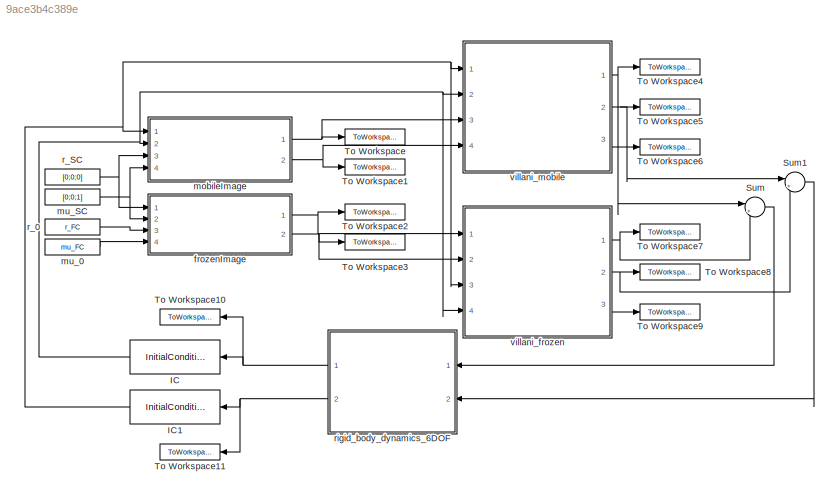
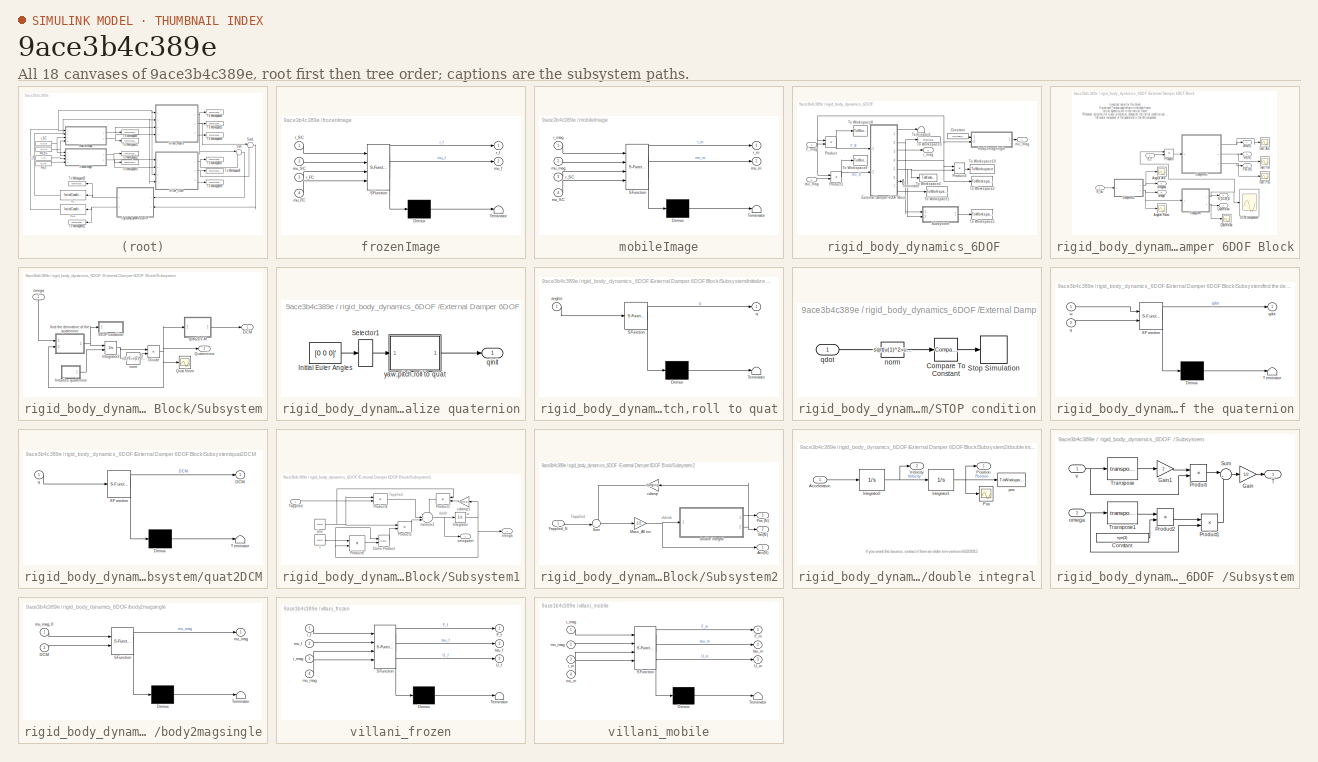
[diagram: thumbnail index - all 18 canvases of the model, root first then tree order]
MODEL slx_9ace3b4c389e
KIND model
BLOCK [InitialCondition] IC
  Value = mu_mag_0
BLOCK [InitialCondition] IC1
  Value = r_mag_0
BLOCK [Sum] Sum
  IconShape = round
  InputSameDT = off
  Inputs = |++
  OutDataTypeStr = Inherit: Inherit via internal rule
  Ports = [2, 1]
  SaturateOnIntegerOverflow = off
BLOCK [Sum] Sum1
  IconShape = round
  InputSameDT = off
  Inputs = |++
  OutDataTypeStr = Inherit: Inherit via internal rule
  Ports = [2, 1]
  SaturateOnIntegerOverflow = off
BLOCK [ToWorkspace] To Workspace
  FixptAsFi = on
  MaxDataPoints = inf
  Ports = [1]
  SampleTime = -1
  Save2DSignal = 3-D array (concatenate along third dimension)
  SaveFormat = Timeseries
  VariableName = r_m
BLOCK [ToWorkspace] To Workspace1
  FixptAsFi = on
  MaxDataPoints = inf
  Ports = [1]
  SampleTime = -1
  Save2DSignal = 3-D array (concatenate along third dimension)
  SaveFormat = Timeseries
  VariableName = mu_m
BLOCK [ToWorkspace] To Workspace10
  FixptAsFi = on
  MaxDataPoints = inf
  Ports = [1]
  SampleTime = -1
  Save2DSignal = 3-D array (concatenate along third dimension)
  SaveFormat = Timeseries
  VariableName = mu_mag
BLOCK [ToWorkspace] To Workspace11
  FixptAsFi = on
  MaxDataPoints = inf
  Ports = [1]
  SampleTime = -1
  Save2DSignal = 3-D array (concatenate along third dimension)
  SaveFormat = Timeseries
  VariableName = r_mag
BLOCK [ToWorkspace] To Workspace2
  FixptAsFi = on
  MaxDataPoints = inf
  Ports = [1]
  SampleTime = -1
  Save2DSignal = 3-D array (concatenate along third dimension)
  SaveFormat = Timeseries
  VariableName = r_f
BLOCK [ToWorkspace] To Workspace3
  FixptAsFi = on
  MaxDataPoints = inf
  Ports = [1]
  SampleTime = -1
  Save2DSignal = 3-D array (concatenate along third dimension)
  SaveFormat = Timeseries
  VariableName = mu_f
BLOCK [ToWorkspace] To Workspace4
  FixptAsFi = on
  MaxDataPoints = inf
  Ports = [1]
  SampleTime = -1
  Save2DSignal = 3-D array (concatenate along third dimension)
  SaveFormat = Timeseries
  VariableName = F_m
BLOCK [ToWorkspace] To Workspace5
  FixptAsFi = on
  MaxDataPoints = inf
  Ports = [1]
  SampleTime = -1
  Save2DSignal = 3-D array (concatenate along third dimension)
  SaveFormat = Timeseries
  VariableName = tau_m
BLOCK [ToWorkspace] To Workspace6
  FixptAsFi = on
  MaxDataPoints = inf
  Ports = [1]
  SampleTime = -1
  Save2DSignal = 3-D array (concatenate along third dimension)
  SaveFormat = Timeseries
  VariableName = U_m
BLOCK [ToWorkspace] To Workspace7
  FixptAsFi = on
  MaxDataPoints = inf
  Ports = [1]
  SampleTime = -1
  Save2DSignal = 3-D array (concatenate along third dimension)
  SaveFormat = Timeseries
  VariableName = F_f
BLOCK [ToWorkspace] To Workspace8
  FixptAsFi = on
  MaxDataPoints = inf
  Ports = [1]
  SampleTime = -1
  Save2DSignal = 3-D array (concatenate along third dimension)
  SaveFormat = Timeseries
  VariableName = tau_f
BLOCK [ToWorkspace] To Workspace9
  FixptAsFi = on
  MaxDataPoints = inf
  Ports = [1]
  SampleTime = -1
  Save2DSignal = 3-D array (concatenate along third dimension)
  SaveFormat = Timeseries
  VariableName = U_f
BLOCK [SubSystem] frozenImage
  ErrorFcn = Stateflow.Translate.translate
  PermitHierarchicalResolution = ExplicitOnly
  Ports = [4, 2]
  RequestExecContextInheritance = off
  SFBlockType = MATLAB Function
  TreatAsAtomicUnit = on
BLOCK [Demux] frozenImage/ Demux 
  Outputs = 1
  Ports = [1, 1]
BLOCK [S-Function] frozenImage/ SFunction 
  EnableBusSupport = on
  FunctionName = sf_sfun
  PortCounts = [4 3]
  Ports = [4, 3]
  Tag = Stateflow S-Function single_magnet_single_superconductor 1
BLOCK [Terminator] frozenImage/ Terminator 
BLOCK [Inport] frozenImage/mu_FC
  IconDisplay = Port number
  Port = 4
BLOCK [Inport] frozenImage/mu_SC
  IconDisplay = Port number
  Port = 2
BLOCK [Outport] frozenImage/mu_f
  IconDisplay = Port number
  Port = 2
BLOCK [Inport] frozenImage/r_FC
  IconDisplay = Port number
  Port = 3
BLOCK [Inport] frozenImage/r_SC
  IconDisplay = Port number
BLOCK [Outport] frozenImage/r_f
  IconDisplay = Port number
BLOCK [SubSystem] mobileImage
  ErrorFcn = Stateflow.Translate.translate
  PermitHierarchicalResolution = ExplicitOnly
  Ports = [4, 2]
  RequestExecContextInheritance = off
  SFBlockType = MATLAB Function
  TreatAsAtomicUnit = on
BLOCK [Demux] mobileImage/ Demux 
  Outputs = 1
  Ports = [1, 1]
BLOCK [S-Function] mobileImage/ SFunction 
  EnableBusSupport = on
  FunctionName = sf_sfun
  PortCounts = [4 3]
  Ports = [4, 3]
  Tag = Stateflow S-Function single_magnet_single_superconductor 2
BLOCK [Terminator] mobileImage/ Terminator 
BLOCK [Inport] mobileImage/mu_SC
  IconDisplay = Port number
  Port = 4
BLOCK [Outport] mobileImage/mu_m
  IconDisplay = Port number
  Port = 2
BLOCK [Inport] mobileImage/mu_mag
  IconDisplay = Port number
  Port = 2
BLOCK [Inport] mobileImage/r_SC
  IconDisplay = Port number
  Port = 3
BLOCK [Outport] mobileImage/r_m
  IconDisplay = Port number
BLOCK [Inport] mobileImage/r_mag
  IconDisplay = Port number
BLOCK [Constant] mu_0
  Value = mu_FC
BLOCK [Constant] mu_SC
  Value = [0;0;1]
BLOCK [Constant] r_0
  Value = r_FC
BLOCK [Constant] r_SC
  Value = [0;0;0]
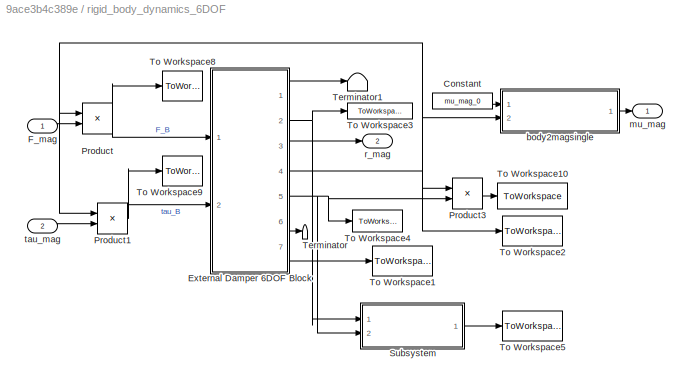
BLOCK [SubSystem] rigid_body_dynamics_6DOF 
  Ports = [2, 2]
  RequestExecContextInheritance = off
BLOCK [Constant] rigid_body_dynamics_6DOF /Constant
  Value = mu_mag_0
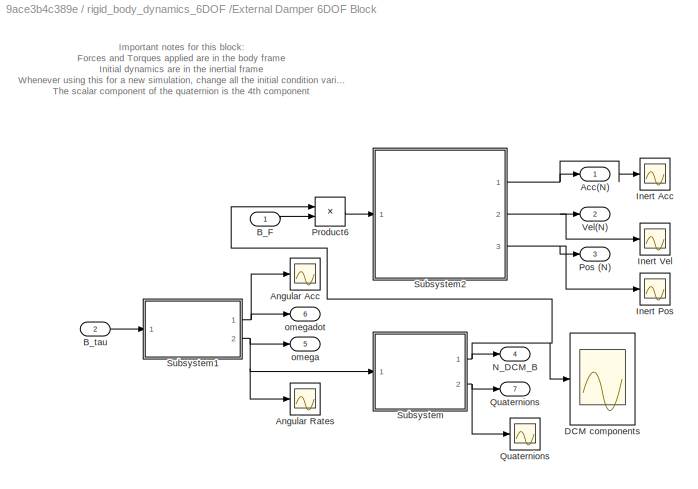
BLOCK [SubSystem] rigid_body_dynamics_6DOF /External Damper 6DOF Block
  AncestorBlock = OS_Sim_library/External Damper 6DOF block\nCollision Block
  Ports = [2, 7]
  RequestExecContextInheritance = off
BLOCK [Outport] rigid_body_dynamics_6DOF /External Damper 6DOF Block/Acc(N)
  IconDisplay = Port number
BLOCK [Scope] rigid_body_dynamics_6DOF /External Damper 6DOF Block/Angular Acc
  DataFormat = StructureWithTime
  Floating = off
  NumInputPorts = 1
  Ports = [1]
  SampleTime = 0
  SaveName = ScopeData30
  ShowLegends = off
  ZoomMode = xonly
BLOCK [Scope] rigid_body_dynamics_6DOF /External Damper 6DOF Block/Angular Rates
  DataFormat = StructureWithTime
  Floating = off
  NumInputPorts = 1
  Ports = [1]
  SampleTime = 0
  SaveName = ScopeData31
  ShowLegends = off
  ZoomMode = yonly
BLOCK [Inport] rigid_body_dynamics_6DOF /External Damper 6DOF Block/B_F
  IconDisplay = Port number
BLOCK [Inport] rigid_body_dynamics_6DOF /External Damper 6DOF Block/B_tau
  IconDisplay = Port number
  Port = 2
BLOCK [Scope] rigid_body_dynamics_6DOF /External Damper 6DOF Block/DCM components
  DataFormat = StructureWithTime
  Floating = off
  NumInputPorts = 1
  Ports = [1]
  SampleTime = 0
  SaveName = ScopeData34
  ShowLegends = off
  ZoomMode = xonly
BLOCK [Scope] rigid_body_dynamics_6DOF /External Damper 6DOF Block/Inert Acc
  DataFormat = StructureWithTime
  Floating = off
  NumInputPorts = 1
  Ports = [1]
  SampleTime = 0
  SaveName = ScopeData20
  ShowLegends = off
  ZoomMode = xonly
BLOCK [Scope] rigid_body_dynamics_6DOF /External Damper 6DOF Block/Inert Pos
  DataFormat = StructureWithTime
  Floating = off
  NumInputPorts = 1
  Ports = [1]
  SampleTime = 0
  SaveName = ScopeData22
  ShowLegends = off
  ZoomMode = yonly
BLOCK [Scope] rigid_body_dynamics_6DOF /External Damper 6DOF Block/Inert Vel
  DataFormat = StructureWithTime
  Floating = off
  NumInputPorts = 1
  Ports = [1]
  SampleTime = 0
  SaveName = ScopeData21
  ShowLegends = off
  ZoomMode = xonly
BLOCK [Outport] rigid_body_dynamics_6DOF /External Damper 6DOF Block/N_DCM_B
  IconDisplay = Port number
  Port = 4
BLOCK [Outport] rigid_body_dynamics_6DOF /External Damper 6DOF Block/Pos (N)
  IconDisplay = Port number
  Port = 3
BLOCK [Product] rigid_body_dynamics_6DOF /External Damper 6DOF Block/Product6
  InputSameDT = off
  Multiplication = Matrix(*)
  OutDataTypeStr = Inherit: Inherit via internal rule
  Ports = [2, 1]
  SaturateOnIntegerOverflow = off
BLOCK [Outport] rigid_body_dynamics_6DOF /External Damper 6DOF Block/Quaternions
  IconDisplay = Port number
  Port = 7
BLOCK [Scope] rigid_body_dynamics_6DOF /External Damper 6DOF Block/Quaternions 
  DataFormat = StructureWithTime
  Floating = off
  NumInputPorts = 1
  Ports = [1]
  SampleTime = 0
  SaveName = ScopeData33
  ShowLegends = off
  ZoomMode = xonly
BLOCK [SubSystem] rigid_body_dynamics_6DOF /External Damper 6DOF Block/Subsystem
  Ports = [1, 2]
  RequestExecContextInheritance = off
BLOCK [Outport] rigid_body_dynamics_6DOF /External Damper 6DOF Block/Subsystem/DCM
  IconDisplay = Port number
BLOCK [Product] rigid_body_dynamics_6DOF /External Damper 6DOF Block/Subsystem/Divide
  InputSameDT = off
  Inputs = */
  OutDataTypeStr = Inherit: Inherit via internal rule
  Ports = [2, 1]
  RndMeth = Floor
  SaturateOnIntegerOverflow = off
BLOCK [SubSystem] rigid_body_dynamics_6DOF /External Damper 6DOF Block/Subsystem/Initialize quaternion
  Ports = [0, 1]
  RequestExecContextInheritance = off
BLOCK [Constant] rigid_body_dynamics_6DOF /External Damper 6DOF Block/Subsystem/Initialize quaternion/Initial Euler Angles
  Value = [0 0 0]'
BLOCK [Selector] rigid_body_dynamics_6DOF /External Damper 6DOF Block/Subsystem/Initialize quaternion/Selector1
  Indices = [3 2 1]
  InputPortWidth = 3
  Ports = [1, 1]
BLOCK [Outport] rigid_body_dynamics_6DOF /External Damper 6DOF Block/Subsystem/Initialize quaternion/qinit
  IconDisplay = Port number
BLOCK [SubSystem] rigid_body_dynamics_6DOF /External Damper 6DOF Block/Subsystem/Initialize quaternion/yaw,pitch,roll to quat
  ErrorFcn = Stateflow.Translate.translate
  PermitHierarchicalResolution = ExplicitOnly
  Ports = [1, 1]
  RequestExecContextInheritance = off
  SFBlockType = MATLAB Function
  TreatAsAtomicUnit = on
BLOCK [Demux] rigid_body_dynamics_6DOF /External Damper 6DOF Block/Subsystem/Initialize quaternion/yaw,pitch,roll to quat/ Demux 
  Outputs = 1
  Ports = [1, 1]
BLOCK [S-Function] rigid_body_dynamics_6DOF /External Damper 6DOF Block/Subsystem/Initialize quaternion/yaw,pitch,roll to quat/ SFunction 
  EnableBusSupport = on
  FunctionName = sf_sfun
  PortCounts = [1 2]
  Ports = [1, 2]
  Tag = Stateflow S-Function single_magnet_single_superconductor 12
BLOCK [Terminator] rigid_body_dynamics_6DOF /External Damper 6DOF Block/Subsystem/Initialize quaternion/yaw,pitch,roll to quat/ Terminator 
BLOCK [Inport] rigid_body_dynamics_6DOF /External Damper 6DOF Block/Subsystem/Initialize quaternion/yaw,pitch,roll to quat/angles
  IconDisplay = Port number
BLOCK [Outport] rigid_body_dynamics_6DOF /External Damper 6DOF Block/Subsystem/Initialize quaternion/yaw,pitch,roll to quat/q
  IconDisplay = Port number
BLOCK [Integrator] rigid_body_dynamics_6DOF /External Damper 6DOF Block/Subsystem/Integrator3
  InitialCondition = Quat_A0
  InitialConditionSource = external
  Ports = [2, 1]
BLOCK [Scope] rigid_body_dynamics_6DOF /External Damper 6DOF Block/Subsystem/Quat Norm
  DataFormat = StructureWithTime
  Floating = off
  NumInputPorts = 1
  Ports = [1]
  SampleTime = 0
  SaveName = ScopeData32
  ShowLegends = off
  YMax = 1
  YMin = -0.1
  ZoomMode = yonly
BLOCK [Outport] rigid_body_dynamics_6DOF /External Damper 6DOF Block/Subsystem/Quaternions
  IconDisplay = Port number
  Port = 2
BLOCK [SubSystem] rigid_body_dynamics_6DOF /External Damper 6DOF Block/Subsystem/STOP condition
  Ports = [1]
  RequestExecContextInheritance = off
BLOCK [Reference] rigid_body_dynamics_6DOF /External Damper 6DOF Block/Subsystem/STOP condition/Compare To Constant  REF=simulink/Logic and Bit
Operations/Compare
To Constant
  OutDataTypeStr = boolean
  Ports = [1, 1]
  SourceBlock = simulink/Logic and Bit\nOperations/Compare\nTo Constant
  SourceType = Compare To Constant
  ZeroCross = on
  const = 10
  relop = >
BLOCK [Stop] rigid_body_dynamics_6DOF /External Damper 6DOF Block/Subsystem/STOP condition/Stop Simulation
BLOCK [Fcn] rigid_body_dynamics_6DOF /External Damper 6DOF Block/Subsystem/STOP condition/norm
  Expr = sqrt(u(1)^2+u(2)^2+u(3)^2)
BLOCK [Inport] rigid_body_dynamics_6DOF /External Damper 6DOF Block/Subsystem/STOP condition/qdot
  IconDisplay = Port number
BLOCK [SubSystem] rigid_body_dynamics_6DOF /External Damper 6DOF Block/Subsystem/find the derivative of the quaternion
  ErrorFcn = Stateflow.Translate.translate
  PermitHierarchicalResolution = ExplicitOnly
  Ports = [2, 1]
  RequestExecContextInheritance = off
  SFBlockType = MATLAB Function
  TreatAsAtomicUnit = on
BLOCK [Demux] rigid_body_dynamics_6DOF /External Damper 6DOF Block/Subsystem/find the derivative of the quaternion/ Demux 
  Outputs = 1
  Ports = [1, 1]
BLOCK [S-Function] rigid_body_dynamics_6DOF /External Damper 6DOF Block/Subsystem/find the derivative of the quaternion/ SFunction 
  EnableBusSupport = on
  FunctionName = sf_sfun
  PortCounts = [2 2]
  Ports = [2, 2]
  Tag = Stateflow S-Function single_magnet_single_superconductor 13
BLOCK [Terminator] rigid_body_dynamics_6DOF /External Damper 6DOF Block/Subsystem/find the derivative of the quaternion/ Terminator 
BLOCK [Inport] rigid_body_dynamics_6DOF /External Damper 6DOF Block/Subsystem/find the derivative of the quaternion/q
  IconDisplay = Port number
  Port = 2
BLOCK [Outport] rigid_body_dynamics_6DOF /External Damper 6DOF Block/Subsystem/find the derivative of the quaternion/qdot
  IconDisplay = Port number
BLOCK [Inport] rigid_body_dynamics_6DOF /External Damper 6DOF Block/Subsystem/find the derivative of the quaternion/w
  IconDisplay = Port number
BLOCK [Fcn] rigid_body_dynamics_6DOF /External Damper 6DOF Block/Subsystem/norm
  Expr = u(1)^2+u(2)^2+u(3)^2+u(4)^2
BLOCK [Inport] rigid_body_dynamics_6DOF /External Damper 6DOF Block/Subsystem/omega
  IconDisplay = Port number
BLOCK [SubSystem] rigid_body_dynamics_6DOF /External Damper 6DOF Block/Subsystem/quat2DCM
  ErrorFcn = Stateflow.Translate.translate
  PermitHierarchicalResolution = ExplicitOnly
  Ports = [1, 1]
  RequestExecContextInheritance = off
  SFBlockType = MATLAB Function
  TreatAsAtomicUnit = on
BLOCK [Demux] rigid_body_dynamics_6DOF /External Damper 6DOF Block/Subsystem/quat2DCM/ Demux 
  Outputs = 1
  Ports = [1, 1]
BLOCK [S-Function] rigid_body_dynamics_6DOF /External Damper 6DOF Block/Subsystem/quat2DCM/ SFunction 
  EnableBusSupport = on
  FunctionName = sf_sfun
  PortCounts = [1 2]
  Ports = [1, 2]
  Tag = Stateflow S-Function single_magnet_single_superconductor 14
BLOCK [Terminator] rigid_body_dynamics_6DOF /External Damper 6DOF Block/Subsystem/quat2DCM/ Terminator 
BLOCK [Outport] rigid_body_dynamics_6DOF /External Damper 6DOF Block/Subsystem/quat2DCM/DCM
  IconDisplay = Port number
BLOCK [Inport] rigid_body_dynamics_6DOF /External Damper 6DOF Block/Subsystem/quat2DCM/q
  IconDisplay = Port number
BLOCK [SubSystem] rigid_body_dynamics_6DOF /External Damper 6DOF Block/Subsystem1
  Ports = [1, 2]
  RequestExecContextInheritance = off
BLOCK [Reference] rigid_body_dynamics_6DOF /External Damper 6DOF Block/Subsystem1/Cross Product  REF=vrlib/Utilities/Cross Product
  Ports = [2, 1]
  SourceBlock = vrlib/Utilities/Cross Product
  SourceType = Cross Product
BLOCK [Constant] rigid_body_dynamics_6DOF /External Damper 6DOF Block/Subsystem1/I
  Value = eye(3)
  VectorParams1D = off
BLOCK [Constant] rigid_body_dynamics_6DOF /External Damper 6DOF Block/Subsystem1/Iinv
  Value = eye(3)
  VectorParams1D = off
BLOCK [Integrator] rigid_body_dynamics_6DOF /External Damper 6DOF Block/Subsystem1/Integrator
  InitialCondition = [0 0 0]'
  Ports = [1, 1]
BLOCK [Product] rigid_body_dynamics_6DOF /External Damper 6DOF Block/Subsystem1/Product1
  InputSameDT = off
  Multiplication = Matrix(*)
  OutDataTypeStr = Inherit: Inherit via internal rule
  Ports = [2, 1]
  SaturateOnIntegerOverflow = off
BLOCK [Product] rigid_body_dynamics_6DOF /External Damper 6DOF Block/Subsystem1/Product4
  InputSameDT = off
  Multiplication = Matrix(*)
  OutDataTypeStr = Inherit: Inherit via internal rule
  Ports = [2, 1]
  SaturateOnIntegerOverflow = off
BLOCK [Product] rigid_body_dynamics_6DOF /External Damper 6DOF Block/Subsystem1/Product5
  InputSameDT = off
  Multiplication = Matrix(*)
  OutDataTypeStr = Inherit: Inherit via internal rule
  Ports = [2, 1]
  SaturateOnIntegerOverflow = off
BLOCK [Product] rigid_body_dynamics_6DOF /External Damper 6DOF Block/Subsystem1/Product6
  InputSameDT = off
  Multiplication = Matrix(*)
  OutDataTypeStr = Inherit: Inherit via internal rule
  Ports = [2, 1]
  SaturateOnIntegerOverflow = off
BLOCK [Inport] rigid_body_dynamics_6DOF /External Damper 6DOF Block/Subsystem1/Tapplied
  IconDisplay = Port number
BLOCK [Gain] rigid_body_dynamics_6DOF /External Damper 6DOF Block/Subsystem1/cdamp1
  Gain = damping
  Multiplication = Matrix(K*u)
  OutDataTypeStr = Inherit: Inherit via internal rule
  ParamDataTypeStr = Inherit: Inherit via internal rule
  SaturateOnIntegerOverflow = off
BLOCK [Sum] rigid_body_dynamics_6DOF /External Damper 6DOF Block/Subsystem1/netsum2
  IconShape = round
  Inputs = -+-
  Ports = [3, 1]
BLOCK [Outport] rigid_body_dynamics_6DOF /External Damper 6DOF Block/Subsystem1/omega
  IconDisplay = Port number
  Port = 2
BLOCK [Outport] rigid_body_dynamics_6DOF /External Damper 6DOF Block/Subsystem1/omegadot
  IconDisplay = Port number
BLOCK [SubSystem] rigid_body_dynamics_6DOF /External Damper 6DOF Block/Subsystem2
  Ports = [1, 3]
  RequestExecContextInheritance = off
BLOCK [Outport] rigid_body_dynamics_6DOF /External Damper 6DOF Block/Subsystem2/Acc(N)
  IconDisplay = Port number
BLOCK [Inport] rigid_body_dynamics_6DOF /External Damper 6DOF Block/Subsystem2/Fapplied_N
  IconDisplay = Port number
BLOCK [Gain] rigid_body_dynamics_6DOF /External Damper 6DOF Block/Subsystem2/Mass_A0 inv
  Gain = 1/2
  Multiplication = Matrix(K*u)
  OutDataTypeStr = Inherit: Inherit via internal rule
  ParamDataTypeStr = Inherit: Inherit via internal rule
  SaturateOnIntegerOverflow = off
BLOCK [Outport] rigid_body_dynamics_6DOF /External Damper 6DOF Block/Subsystem2/Pos (N)
  IconDisplay = Port number
  Port = 3
BLOCK [Sum] rigid_body_dynamics_6DOF /External Damper 6DOF Block/Subsystem2/Sum
  IconShape = round
  InputSameDT = off
  Inputs = -+|
  OutDataTypeStr = Inherit: Inherit via internal rule
  Ports = [2, 1]
BLOCK [Outport] rigid_body_dynamics_6DOF /External Damper 6DOF Block/Subsystem2/Vel(N)
  IconDisplay = Port number
  Port = 2
BLOCK [Gain] rigid_body_dynamics_6DOF /External Damper 6DOF Block/Subsystem2/cdamp
  Gain = damping
  Multiplication = Matrix(K*u)
  OutDataTypeStr = Inherit: Inherit via internal rule
  ParamDataTypeStr = Inherit: Inherit via internal rule
  SaturateOnIntegerOverflow = off
BLOCK [SubSystem] rigid_body_dynamics_6DOF /External Damper 6DOF Block/Subsystem2/double integral
  Ports = [1, 2]
  RequestExecContextInheritance = off
BLOCK [Inport] rigid_body_dynamics_6DOF /External Damper 6DOF Block/Subsystem2/double integral/Acceleration
  IconDisplay = Port number
BLOCK [Integrator] rigid_body_dynamics_6DOF /External Damper 6DOF Block/Subsystem2/double integral/Integrator1
  InitialCondition = r_mag_0
  Ports = [1, 1]
BLOCK [Integrator] rigid_body_dynamics_6DOF /External Damper 6DOF Block/Subsystem2/double integral/Integrator2
  InitialCondition = [0 0 0]'
  LowerSaturationLimit = -100
  Ports = [1, 1]
  UpperSaturationLimit = 100
BLOCK [Scope] rigid_body_dynamics_6DOF /External Damper 6DOF Block/Subsystem2/double integral/Pos
  Floating = off
  NumInputPorts = 1
  Ports = [1]
  SaveName = ScopeData1
  ShowLegends = off
  ZoomMode = yonly
BLOCK [Outport] rigid_body_dynamics_6DOF /External Damper 6DOF Block/Subsystem2/double integral/Position
  IconDisplay = Port number
BLOCK [Outport] rigid_body_dynamics_6DOF /External Damper 6DOF Block/Subsystem2/double integral/Velocity
  IconDisplay = Port number
  Port = 2
BLOCK [ToWorkspace] rigid_body_dynamics_6DOF /External Damper 6DOF Block/Subsystem2/double integral/pos
  FixptAsFi = on
  MaxDataPoints = inf
  Ports = [1]
  SampleTime = -1
  Save2DSignal = 3-D array (concatenate along third dimension)
  SaveFormat = Timeseries
  VariableName = pos
BLOCK [Outport] rigid_body_dynamics_6DOF /External Damper 6DOF Block/Vel(N)
  IconDisplay = Port number
  Port = 2
  PortDimensions = [3 1]
BLOCK [Outport] rigid_body_dynamics_6DOF /External Damper 6DOF Block/omega
  IconDisplay = Port number
  Port = 5
  PortDimensions = [3 1]
BLOCK [Outport] rigid_body_dynamics_6DOF /External Damper 6DOF Block/omegadot
  IconDisplay = Port number
  Port = 6
BLOCK [Inport] rigid_body_dynamics_6DOF /F_mag
  IconDisplay = Port number
BLOCK [Product] rigid_body_dynamics_6DOF /Product
  InputSameDT = off
  Multiplication = Matrix(*)
  OutDataTypeStr = Inherit: Inherit via internal rule
  Ports = [2, 1]
  RndMeth = Floor
  SaturateOnIntegerOverflow = off
BLOCK [Product] rigid_body_dynamics_6DOF /Product1
  InputSameDT = off
  Multiplication = Matrix(*)
  OutDataTypeStr = Inherit: Inherit via internal rule
  Ports = [2, 1]
  RndMeth = Floor
  SaturateOnIntegerOverflow = off
BLOCK [Product] rigid_body_dynamics_6DOF /Product3
  InputSameDT = off
  Multiplication = Matrix(*)
  OutDataTypeStr = Inherit: Inherit via internal rule
  Ports = [2, 1]
  RndMeth = Floor
  SaturateOnIntegerOverflow = off
BLOCK [SubSystem] rigid_body_dynamics_6DOF /Subsystem
  Ports = [2, 1]
  RequestExecContextInheritance = off
BLOCK [Constant] rigid_body_dynamics_6DOF /Subsystem/Constant
  Value = eye(3)
BLOCK [Gain] rigid_body_dynamics_6DOF /Subsystem/Gain
  Gain = 1/2
  OutDataTypeStr = Inherit: Inherit via internal rule
  ParamDataTypeStr = Inherit: Inherit via internal rule
  SaturateOnIntegerOverflow = off
BLOCK [Gain] rigid_body_dynamics_6DOF /Subsystem/Gain1
  Gain = 2
  Multiplication = Matrix(K*u)
  OutDataTypeStr = Inherit: Inherit via internal rule
  ParamDataTypeStr = Inherit: Inherit via internal rule
  SaturateOnIntegerOverflow = off
BLOCK [Product] rigid_body_dynamics_6DOF /Subsystem/Product
  InputSameDT = off
  Multiplication = Matrix(*)
  OutDataTypeStr = Inherit: Inherit via internal rule
  Ports = [2, 1]
  RndMeth = Floor
  SaturateOnIntegerOverflow = off
BLOCK [Product] rigid_body_dynamics_6DOF /Subsystem/Product1
  InputSameDT = off
  Multiplication = Matrix(*)
  OutDataTypeStr = Inherit: Inherit via internal rule
  Ports = [2, 1]
  RndMeth = Floor
  SaturateOnIntegerOverflow = off
BLOCK [Product] rigid_body_dynamics_6DOF /Subsystem/Product2
  InputSameDT = off
  Multiplication = Matrix(*)
  OutDataTypeStr = Inherit: Inherit via internal rule
  Ports = [2, 1]
  RndMeth = Floor
  SaturateOnIntegerOverflow = off
BLOCK [Sum] rigid_body_dynamics_6DOF /Subsystem/Sum
  IconShape = round
  InputSameDT = off
  Inputs = |++
  OutDataTypeStr = Inherit: Inherit via internal rule
  Ports = [2, 1]
  SaturateOnIntegerOverflow = off
BLOCK [Outport] rigid_body_dynamics_6DOF /Subsystem/T
  IconDisplay = Port number
  PortDimensions = 1
BLOCK [Math] rigid_body_dynamics_6DOF /Subsystem/Transpose
  Operator = transpose
  Ports = [1, 1]
BLOCK [Math] rigid_body_dynamics_6DOF /Subsystem/Transpose1
  Operator = transpose
  Ports = [1, 1]
BLOCK [Inport] rigid_body_dynamics_6DOF /Subsystem/omega
  IconDisplay = Port number
  Port = 2
BLOCK [Inport] rigid_body_dynamics_6DOF /Subsystem/v
  IconDisplay = Port number
BLOCK [Terminator] rigid_body_dynamics_6DOF /Terminator
BLOCK [Terminator] rigid_body_dynamics_6DOF /Terminator1
BLOCK [ToWorkspace] rigid_body_dynamics_6DOF /To Workspace1
  FixptAsFi = on
  MaxDataPoints = inf
  Ports = [1]
  SampleTime = -1
  Save2DSignal = 3-D array (concatenate along third dimension)
  SaveFormat = Timeseries
  VariableName = quat
BLOCK [ToWorkspace] rigid_body_dynamics_6DOF /To Workspace10
  FixptAsFi = on
  MaxDataPoints = inf
  Ports = [1]
  SampleTime = -1
  Save2DSignal = 3-D array (concatenate along third dimension)
  SaveFormat = Timeseries
  VariableName = omega_N
BLOCK [ToWorkspace] rigid_body_dynamics_6DOF /To Workspace2
  FixptAsFi = on
  MaxDataPoints = inf
  Ports = [1]
  SampleTime = -1
  Save2DSignal = 3-D array (concatenate along third dimension)
  SaveFormat = Structure With Time
  VariableName = DCM
BLOCK [ToWorkspace] rigid_body_dynamics_6DOF /To Workspace3
  FixptAsFi = on
  MaxDataPoints = inf
  Ports = [1]
  SampleTime = -1
  Save2DSignal = 3-D array (concatenate along third dimension)
  SaveFormat = Timeseries
  VariableName = vel_N
BLOCK [ToWorkspace] rigid_body_dynamics_6DOF /To Workspace4
  FixptAsFi = on
  MaxDataPoints = inf
  Ports = [1]
  SampleTime = -1
  Save2DSignal = 3-D array (concatenate along third dimension)
  SaveFormat = Timeseries
  VariableName = omega_b
BLOCK [ToWorkspace] rigid_body_dynamics_6DOF /To Workspace5
  FixptAsFi = on
  MaxDataPoints = inf
  Ports = [1]
  SampleTime = -1
  Save2DSignal = 3-D array (concatenate along third dimension)
  SaveFormat = Timeseries
  VariableName = TE
BLOCK [ToWorkspace] rigid_body_dynamics_6DOF /To Workspace8
  FixptAsFi = on
  MaxDataPoints = inf
  Ports = [1]
  SampleTime = -1
  Save2DSignal = 3-D array (concatenate along third dimension)
  SaveFormat = Timeseries
  VariableName = F_body_B
BLOCK [ToWorkspace] rigid_body_dynamics_6DOF /To Workspace9
  FixptAsFi = on
  MaxDataPoints = inf
  Ports = [1]
  SampleTime = -1
  Save2DSignal = 3-D array (concatenate along third dimension)
  SaveFormat = Timeseries
  VariableName = tau_body_B
BLOCK [SubSystem] rigid_body_dynamics_6DOF /body2magsingle
  ErrorFcn = Stateflow.Translate.translate
  PermitHierarchicalResolution = ExplicitOnly
  Ports = [2, 1]
  RequestExecContextInheritance = off
  SFBlockType = MATLAB Function
  TreatAsAtomicUnit = on
BLOCK [Demux] rigid_body_dynamics_6DOF /body2magsingle/ Demux 
  Outputs = 1
  Ports = [1, 1]
BLOCK [S-Function] rigid_body_dynamics_6DOF /body2magsingle/ SFunction 
  EnableBusSupport = on
  FunctionName = sf_sfun
  PortCounts = [2 2]
  Ports = [2, 2]
  Tag = Stateflow S-Function single_magnet_single_superconductor 5
BLOCK [Terminator] rigid_body_dynamics_6DOF /body2magsingle/ Terminator 
BLOCK [Inport] rigid_body_dynamics_6DOF /body2magsingle/DCM
  IconDisplay = Port number
  Port = 2
BLOCK [Outport] rigid_body_dynamics_6DOF /body2magsingle/mu_mag
  IconDisplay = Port number
BLOCK [Inport] rigid_body_dynamics_6DOF /body2magsingle/mu_mag_0
  IconDisplay = Port number
BLOCK [Outport] rigid_body_dynamics_6DOF /mu_mag
  IconDisplay = Port number
BLOCK [Outport] rigid_body_dynamics_6DOF /r_mag
  IconDisplay = Port number
  Port = 2
BLOCK [Inport] rigid_body_dynamics_6DOF /tau_mag
  IconDisplay = Port number
  Port = 2
BLOCK [SubSystem] villani_frozen
  ErrorFcn = Stateflow.Translate.translate
  PermitHierarchicalResolution = ExplicitOnly
  Ports = [4, 3]
  RequestExecContextInheritance = off
  SFBlockType = MATLAB Function
  TreatAsAtomicUnit = on
BLOCK [Demux] villani_frozen/ Demux 
  Outputs = 1
  Ports = [1, 1]
BLOCK [S-Function] villani_frozen/ SFunction 
  EnableBusSupport = on
  FunctionName = sf_sfun
  PortCounts = [4 4]
  Ports = [4, 4]
  Tag = Stateflow S-Function single_magnet_single_superconductor 4
BLOCK [Terminator] villani_frozen/ Terminator 
BLOCK [Outport] villani_frozen/F_f
  IconDisplay = Port number
BLOCK [Outport] villani_frozen/U_f
  IconDisplay = Port number
  Port = 3
BLOCK [Inport] villani_frozen/mu_f
  IconDisplay = Port number
  Port = 2
BLOCK [Inport] villani_frozen/mu_mag
  IconDisplay = Port number
  Port = 4
BLOCK [Inport] villani_frozen/r_f
  IconDisplay = Port number
BLOCK [Inport] villani_frozen/r_mag
  IconDisplay = Port number
  Port = 3
BLOCK [Outport] villani_frozen/tau_f
  IconDisplay = Port number
  Port = 2
BLOCK [SubSystem] villani_mobile
  ErrorFcn = Stateflow.Translate.translate
  PermitHierarchicalResolution = ExplicitOnly
  Ports = [4, 3]
  RequestExecContextInheritance = off
  SFBlockType = MATLAB Function
  TreatAsAtomicUnit = on
BLOCK [Demux] villani_mobile/ Demux 
  Outputs = 1
  Ports = [1, 1]
BLOCK [S-Function] villani_mobile/ SFunction 
  EnableBusSupport = on
  FunctionName = sf_sfun
  PortCounts = [4 4]
  Ports = [4, 4]
  Tag = Stateflow S-Function single_magnet_single_superconductor 3
BLOCK [Terminator] villani_mobile/ Terminator 
BLOCK [Outport] villani_mobile/F_m
  IconDisplay = Port number
BLOCK [Outport] villani_mobile/U_m
  IconDisplay = Port number
  Port = 3
BLOCK [Inport] villani_mobile/mu_m
  IconDisplay = Port number
  Port = 4
BLOCK [Inport] villani_mobile/mu_mag
  IconDisplay = Port number
  Port = 2
BLOCK [Inport] villani_mobile/r_m
  IconDisplay = Port number
  Port = 3
BLOCK [Inport] villani_mobile/r_mag
  IconDisplay = Port number
BLOCK [Outport] villani_mobile/tau_m
  IconDisplay = Port number
  Port = 2
ANNOTATION rigid_body_dynamics_6DOF /External Damper 6DOF Block: Important notes for this block: Forces and Torques applied are in the body frame Initial dynamics are in the inertial frame Whenever using this for a new simulation, change all the initial condition variable names in the integrator blocks The scalar component of the quaternion is the 4th component
ANNOTATION rigid_body_dynamics_6DOF /External Damper 6DOF Block/Subsystem1: Tapplied
ANNOTATION rigid_body_dynamics_6DOF /External Damper 6DOF Block/Subsystem1: dw/dt
ANNOTATION rigid_body_dynamics_6DOF /External Damper 6DOF Block/Subsystem1: w
ANNOTATION rigid_body_dynamics_6DOF /External Damper 6DOF Block/Subsystem2: Fapplied
ANNOTATION rigid_body_dynamics_6DOF /External Damper 6DOF Block/Subsystem2: dVn/dt
ANNOTATION rigid_body_dynamics_6DOF /External Damper 6DOF Block/Subsystem2/double integral: if you want the bounce, extract it from an older sim version 6/22/2015
NET IC1:1 -> mobileImage:1, villani_frozen:3, villani_mobile:1
NET IC:1 -> mobileImage:2, villani_frozen:4, villani_mobile:2
LINE Sum1:1 -> rigid_body_dynamics_6DOF :2
LINE Sum:1 -> rigid_body_dynamics_6DOF :1
NET frozenImage:1 -> To Workspace2:1, villani_frozen:1
NET frozenImage:2 -> To Workspace3:1, villani_frozen:2
NET mobileImage:1 -> To Workspace:1, villani_mobile:3
NET mobileImage:2 -> To Workspace1:1, villani_mobile:4
LINE mu_0:1 -> frozenImage:4
NET mu_SC:1 -> frozenImage:2, mobileImage:4
LINE r_0:1 -> frozenImage:3
NET r_SC:1 -> frozenImage:1, mobileImage:3
LINE rigid_body_dynamics_6DOF /Constant:1 -> rigid_body_dynamics_6DOF /body2magsingle:1
LINE rigid_body_dynamics_6DOF /External Damper 6DOF Block:1 -> rigid_body_dynamics_6DOF /Terminator1:1
NET rigid_body_dynamics_6DOF /External Damper 6DOF Block:2 -> rigid_body_dynamics_6DOF /Subsystem:1, rigid_body_dynamics_6DOF /To Workspace3:1
LINE rigid_body_dynamics_6DOF /External Damper 6DOF Block:3 -> rigid_body_dynamics_6DOF /r_mag:1
NET rigid_body_dynamics_6DOF /External Damper 6DOF Block:4 -> rigid_body_dynamics_6DOF /Product1:1, rigid_body_dynamics_6DOF /Product3:1, rigid_body_dynamics_6DOF /Product:1, rigid_body_dynamics_6DOF /To Workspace2:1, rigid_body_dynamics_6DOF /body2magsingle:2
NET rigid_body_dynamics_6DOF /External Damper 6DOF Block:5 -> rigid_body_dynamics_6DOF /Product3:2, rigid_body_dynamics_6DOF /Subsystem:2, rigid_body_dynamics_6DOF /To Workspace4:1
LINE rigid_body_dynamics_6DOF /External Damper 6DOF Block:6 -> rigid_body_dynamics_6DOF /Terminator:1
LINE rigid_body_dynamics_6DOF /External Damper 6DOF Block:7 -> rigid_body_dynamics_6DOF /To Workspace1:1
LINE rigid_body_dynamics_6DOF /F_mag:1 -> rigid_body_dynamics_6DOF /Product:2
NET rigid_body_dynamics_6DOF /Product1:1 -> rigid_body_dynamics_6DOF /External Damper 6DOF Block:2, rigid_body_dynamics_6DOF /To Workspace9:1
LINE rigid_body_dynamics_6DOF /Product3:1 -> rigid_body_dynamics_6DOF /To Workspace10:1
NET rigid_body_dynamics_6DOF /Product:1 -> rigid_body_dynamics_6DOF /External Damper 6DOF Block:1, rigid_body_dynamics_6DOF /To Workspace8:1
LINE rigid_body_dynamics_6DOF /Subsystem/Constant:1 -> rigid_body_dynamics_6DOF /Subsystem/Product2:2
LINE rigid_body_dynamics_6DOF /Subsystem/Gain1:1 -> rigid_body_dynamics_6DOF /Subsystem/Product:1
LINE rigid_body_dynamics_6DOF /Subsystem/Gain:1 -> rigid_body_dynamics_6DOF /Subsystem/T:1
LINE rigid_body_dynamics_6DOF /Subsystem/Product1:1 -> rigid_body_dynamics_6DOF /Subsystem/Sum:2
LINE rigid_body_dynamics_6DOF /Subsystem/Product2:1 -> rigid_body_dynamics_6DOF /Subsystem/Product1:1
LINE rigid_body_dynamics_6DOF /Subsystem/Product:1 -> rigid_body_dynamics_6DOF /Subsystem/Sum:1
LINE rigid_body_dynamics_6DOF /Subsystem/Sum:1 -> rigid_body_dynamics_6DOF /Subsystem/Gain:1
LINE rigid_body_dynamics_6DOF /Subsystem/Transpose1:1 -> rigid_body_dynamics_6DOF /Subsystem/Product2:1
LINE rigid_body_dynamics_6DOF /Subsystem/Transpose:1 -> rigid_body_dynamics_6DOF /Subsystem/Gain1:1
NET rigid_body_dynamics_6DOF /Subsystem/omega:1 -> rigid_body_dynamics_6DOF /Subsystem/Product1:2, rigid_body_dynamics_6DOF /Subsystem/Transpose1:1
NET rigid_body_dynamics_6DOF /Subsystem/v:1 -> rigid_body_dynamics_6DOF /Subsystem/Product:2, rigid_body_dynamics_6DOF /Subsystem/Transpose:1
LINE rigid_body_dynamics_6DOF /Subsystem:1 -> rigid_body_dynamics_6DOF /To Workspace5:1
LINE rigid_body_dynamics_6DOF /body2magsingle:1 -> rigid_body_dynamics_6DOF /mu_mag:1
LINE rigid_body_dynamics_6DOF /tau_mag:1 -> rigid_body_dynamics_6DOF /Product1:2
NET rigid_body_dynamics_6DOF :1 -> IC:1, To Workspace10:1
NET rigid_body_dynamics_6DOF :2 -> IC1:1, To Workspace11:1
NET villani_frozen:1 -> Sum:2, To Workspace7:1
NET villani_frozen:2 -> Sum1:2, To Workspace8:1
LINE villani_frozen:3 -> To Workspace9:1
NET villani_mobile:1 -> Sum:1, To Workspace4:1
NET villani_mobile:2 -> Sum1:1, To Workspace5:1
LINE villani_mobile:3 -> To Workspace6:1
note: NET lines group one-source signal fan-out (src -> all destinations, sorted); 1:1 wires keep LINE
